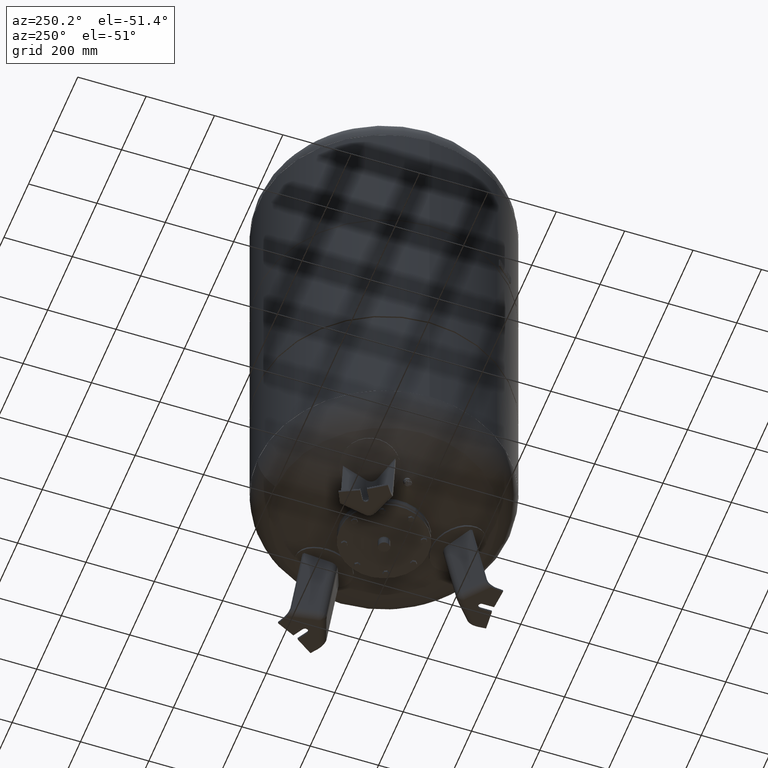
[diagram: clean part render]
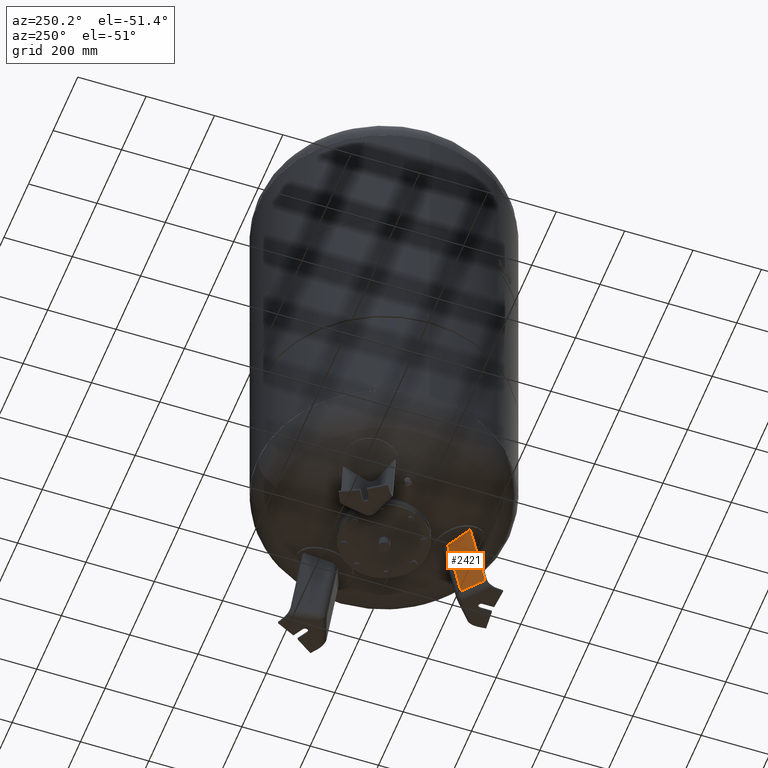
[diagram: same view with one face highlighted and labeled with its STEP entity id]
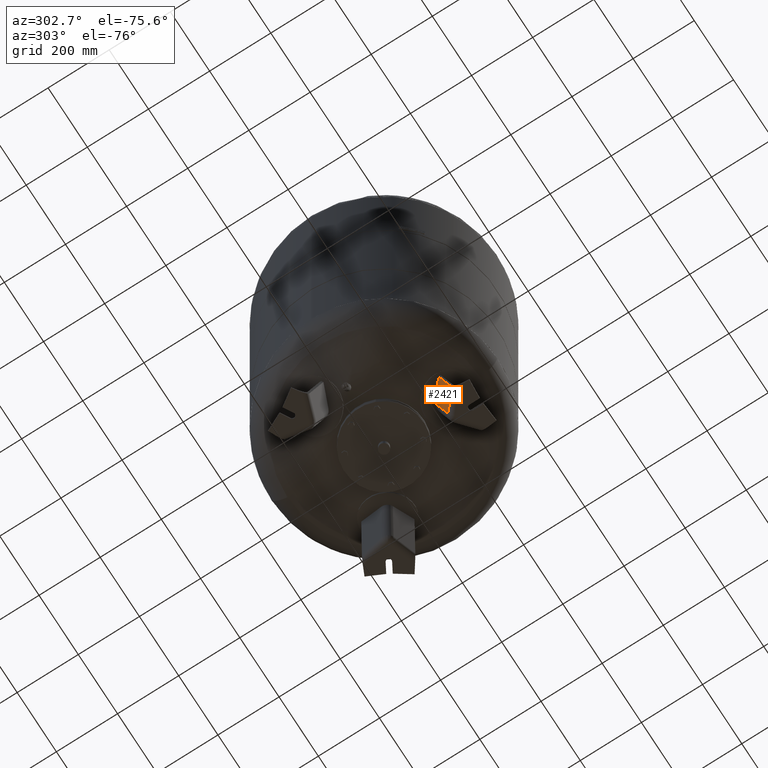
[diagram: same view with one face highlighted and labeled with its STEP entity id]
A machine part, auxiliary view. The second image highlights one B-rep face of the part: STEP entity #2421.
A second angle (auxiliary view) of the same face is appended — the face is thin or edge-on in the first view.
In plain terms, the highlighted planar face has unit normal (-0.6455, 0.7471, -0.1588).
Its self-contained STEP definition (entity closure, byte-faithful):
#2338=CARTESIAN_POINT('',(-16.136450826554519,-180.065279163033470,206.419109493446830));
#2339=VERTEX_POINT('',#2338);
#2355=CARTESIAN_POINT('',(-73.499999999999986,-224.586297198034120,230.120878968208760));
#2356=VERTEX_POINT('',#2355);
#2357=CARTESIAN_POINT('',(-73.499999999999986,-224.586297198034120,230.120878968208760));
#2358=CARTESIAN_POINT('',(-62.858036945115714,-216.458147537309970,225.106085466333040));
#2359=CARTESIAN_POINT('',(-52.229069748678597,-208.270124671794860,220.425795489885990));
#2360=CARTESIAN_POINT('',(-35.915460153680982,-195.590355272951830,213.772030183207990));
#2361=CARTESIAN_POINT('',(-30.188304126259563,-191.117210884413140,211.538240111227740));
#2362=CARTESIAN_POINT('',(-21.696926014053869,-184.449454810698430,208.393982911335310));
#2363=CARTESIAN_POINT('',(-18.913416046005391,-182.257954077352710,207.390483448243770));
#2364=CARTESIAN_POINT('',(-16.136450826554519,-180.065279163033470,206.419109493446830));
#2365=B_SPLINE_CURVE_WITH_KNOTS('',3,(#2357,#2358,#2359,#2360,#2361,#2362,#2363,#2364),.UNSPECIFIED.,.F.,.U.,(4,2,2,4),(536.762478861198470,540.755951889067660,542.927906845961390,543.990518214376830),.UNSPECIFIED.);
#2366=EDGE_CURVE('',#2356,#2339,#2365,.T.);
#2391=CARTESIAN_POINT('',(-73.500000000000000,-287.897581157592580,-67.735293817669458));
#2392=DIRECTION('',(-0.645458033062181,0.747104967402683,-0.158802063077709));
#2393=DIRECTION('',(-1.324933E-016,-0.207911690817760,-0.978147600733806));
#2394=AXIS2_PLACEMENT_3D('',#2391,#2392,#2393);
#2395=PLANE('',#2394);
#2396=CARTESIAN_POINT('',(-16.136450826554540,-219.470961811045530,21.029948423057292));
#2397=VERTEX_POINT('',#2396);
#2398=CARTESIAN_POINT('',(-16.136450826554540,-219.470961811045530,21.029948423057292));
#2399=DIRECTION('',(1.124687E-016,0.207911690817760,0.978147600733805));
#2400=VECTOR('',#2399,189.530865210230810);
#2401=LINE('',#2398,#2400);
#2402=EDGE_CURVE('',#2397,#2339,#2401,.T.);
#2403=ORIENTED_EDGE('',*,*,#2402,.F.);
#2404=CARTESIAN_POINT('',(-73.500000000000000,-269.029946471096990,21.029948423057292));
#2405=VERTEX_POINT('',#2404);
#2406=CARTESIAN_POINT('',(-73.500000000000000,-269.029946471096990,21.029948423057292));
#2407=DIRECTION('',(0.756707249513243,0.653753882232529,0.0));
#2408=VECTOR('',#2407,75.806792138366546);
#2409=LINE('',#2406,#2408);
#2410=EDGE_CURVE('',#2405,#2397,#2409,.T.);
#2411=ORIENTED_EDGE('',*,*,#2410,.F.);
#2412=CARTESIAN_POINT('',(-73.500000000000000,-269.029946471096990,21.029948423057292));
#2413=DIRECTION('',(6.647975E-017,0.207911690817760,0.978147600733805));
#2414=VECTOR('',#2413,213.762146314412720);
#2415=LINE('',#2412,#2414);
#2416=EDGE_CURVE('',#2405,#2356,#2415,.T.);
#2417=ORIENTED_EDGE('',*,*,#2416,.T.);
#2418=ORIENTED_EDGE('',*,*,#2366,.T.);
#2419=EDGE_LOOP('',(#2403,#2411,#2417,#2418));
#2420=FACE_OUTER_BOUND('',#2419,.T.);
#2421=ADVANCED_FACE('',(#2420),#2395,.T.);